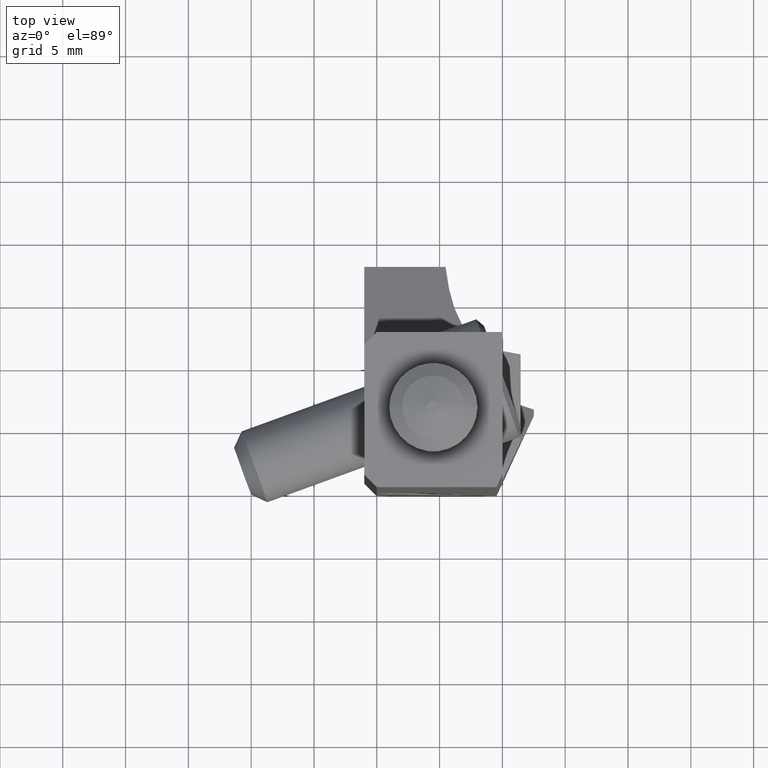
[diagram: clean part render]
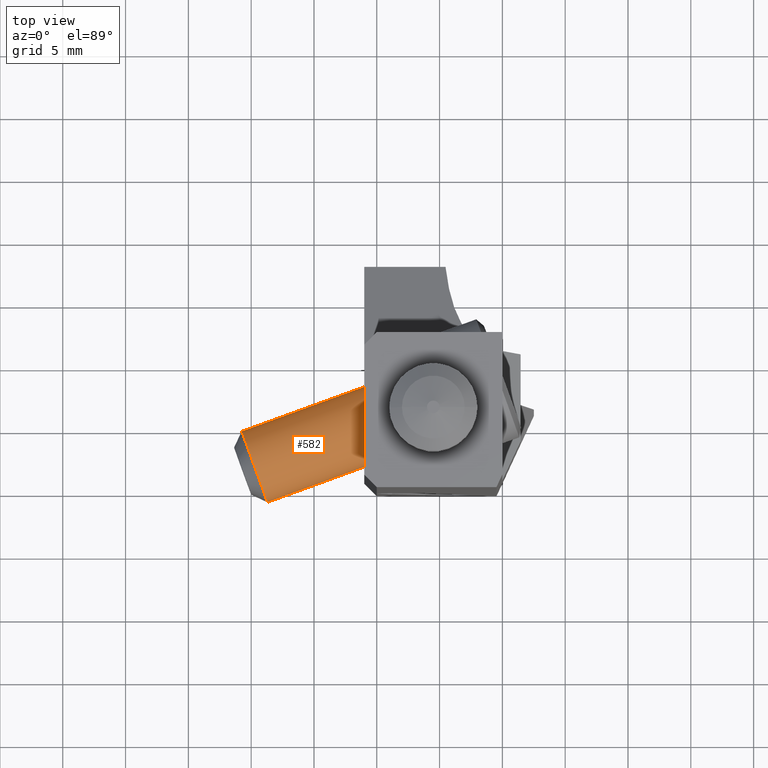
[diagram: same view with one face highlighted and labeled with its STEP entity id]
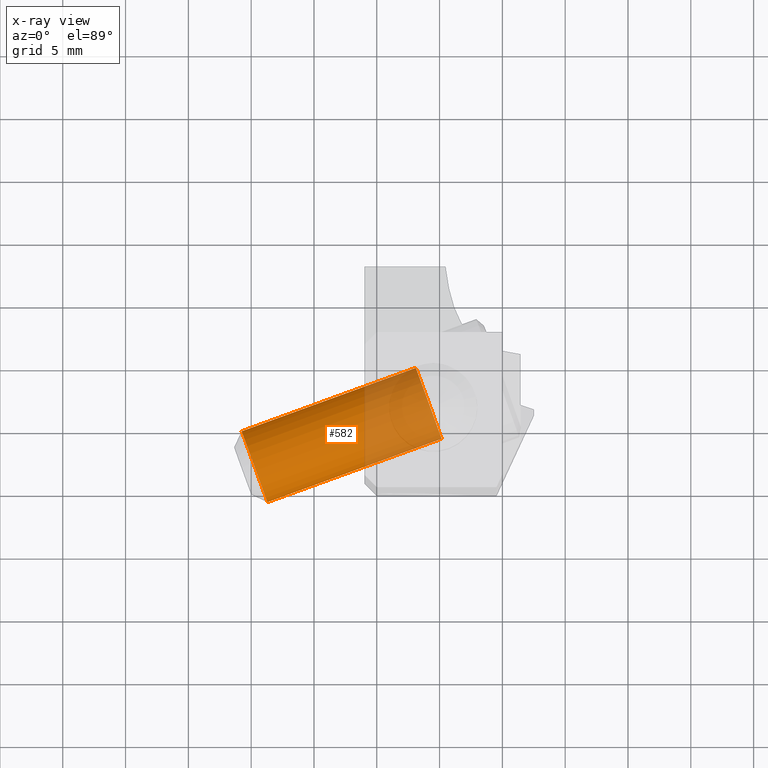
[diagram: x-ray of the same camera — body ghosted, the highlighted face saturated]
A machine part, top view. The second image highlights one B-rep face of the part: STEP entity #582.
The next image is the same camera in x-ray: the body ghosted, the highlighted face saturated — about 37% of this face is hidden behind the body in this view.
In plain terms, the highlighted cylindrical surface (partial cylindrical patch) has radius 3 mm, axis along (0.9397, 0.342, 0).
Its self-contained STEP definition (entity closure, byte-faithful):
#202=CYLINDRICAL_SURFACE('',#4634,3.000000000004);
#364=CIRCLE('',#4627,3.000000000004);
#367=CIRCLE('',#4633,2.999999999999);
#582=ADVANCED_FACE('',(#904),#202,.T.);
#904=FACE_OUTER_BOUND('',#1131,.T.);
#1131=EDGE_LOOP('',(#2335,#2336,#2337,#2338));
#2335=ORIENTED_EDGE('',*,*,#3349,.T.);
#2336=ORIENTED_EDGE('',*,*,#3346,.F.);
#2337=ORIENTED_EDGE('',*,*,#3342,.F.);
#2338=ORIENTED_EDGE('',*,*,#3348,.F.);
#2764=VERTEX_POINT('',#7669);
#2765=VERTEX_POINT('',#7670);
#2766=VERTEX_POINT('',#7677);
#2767=VERTEX_POINT('',#7679);
#3342=EDGE_CURVE('',#2764,#2765,#364,.T.);
#3346=EDGE_CURVE('',#2765,#2766,#3711,.T.);
#3348=EDGE_CURVE('',#2767,#2764,#3712,.T.);
#3349=EDGE_CURVE('',#2767,#2766,#367,.T.);
#3711=LINE('',#7676,#4064);
#3712=LINE('',#7680,#4065);
#4064=VECTOR('',#5835,1.);
#4065=VECTOR('',#5838,1.);
#4627=AXIS2_PLACEMENT_3D('',#7668,#5825,#5826);
#4633=AXIS2_PLACEMENT_3D('',#7682,#5841,#5842);
#4634=AXIS2_PLACEMENT_3D('',#7683,#5843,#5844);
#5825=DIRECTION('',(-0.939692620785822,-0.342020143325908,0.));
#5826=DIRECTION('',(0.342020143325908,-0.939692620785822,0.));
#5835=DIRECTION('',(0.939692620785865,0.342020143325787,0.));
#5838=DIRECTION('',(-0.939692620786114,-0.342020143325105,0.));
#5841=DIRECTION('',(-0.939692620786146,-0.342020143325017,0.));
#5842=DIRECTION('',(0.342020143325017,-0.939692620786146,0.));
#5843=DIRECTION('',(0.939692620785821,0.342020143325908,0.));
#5844=DIRECTION('',(0.342020143325908,-0.939692620785821,0.));
#7668=CARTESIAN_POINT('',(-19.7335450365,1.821249567084,-12.));
#7669=CARTESIAN_POINT('',(-18.70748460653,-0.9978282952627,-12.));
#7670=CARTESIAN_POINT('',(-20.75960546648,4.640327429446,-12.));
#7676=CARTESIAN_POINT('',(-20.75960546648,4.640327429446,-12.));
#7677=CARTESIAN_POINT('',(-6.899139309889,9.685124543501,-12.));
#7679=CARTESIAN_POINT('',(-4.847018449935,4.046968818782,-12.));
#7680=CARTESIAN_POINT('',(-4.847018449935,4.046968818782,-12.));
#7682=CARTESIAN_POINT('',(-5.873078879914,6.866046681142,-12.));
#7683=CARTESIAN_POINT('',(-20.01075435963,1.720353624803,-12.));